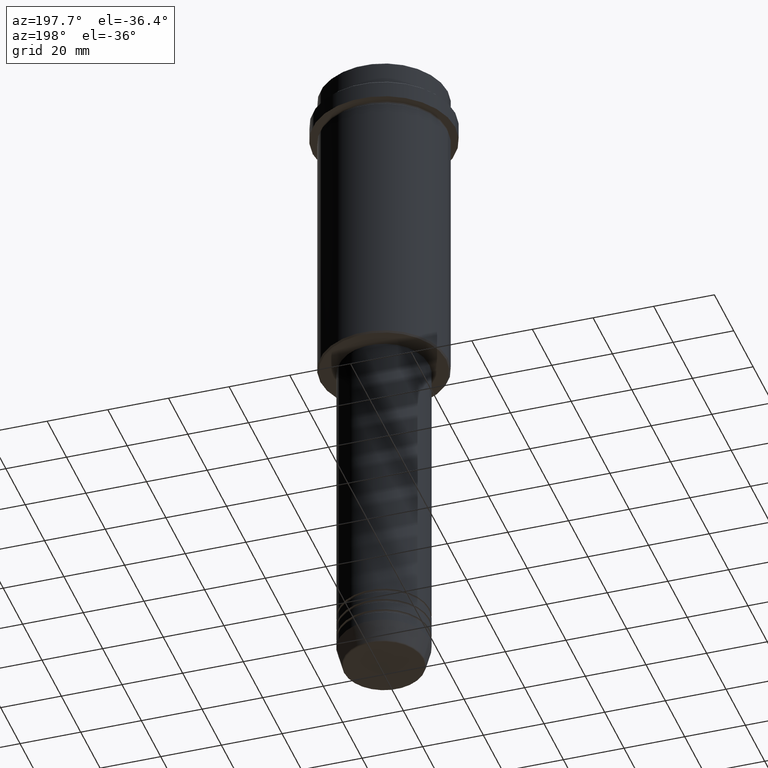
[diagram: clean part render]
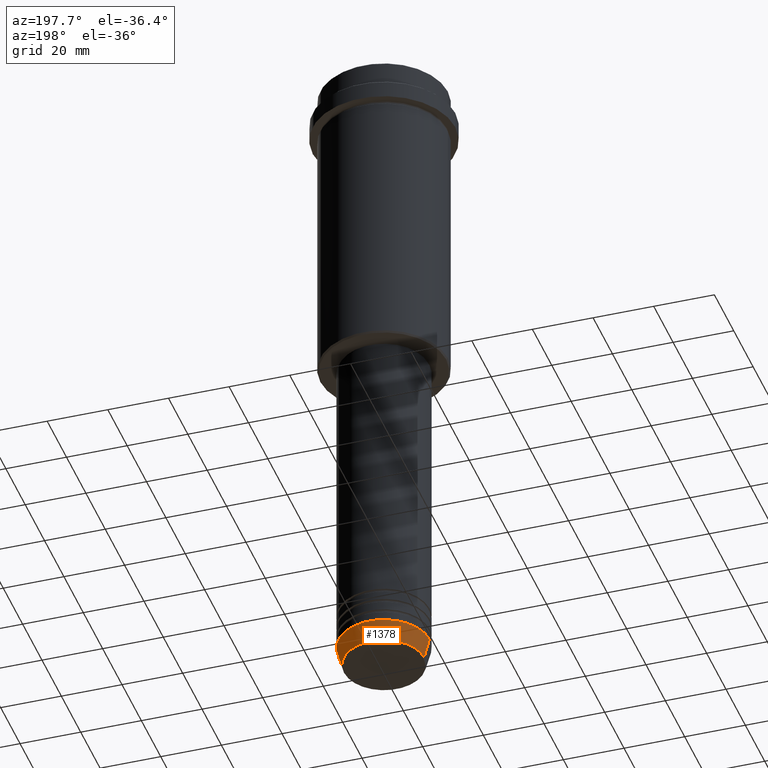
[diagram: same view with one face highlighted and labeled with its STEP entity id]
A machine part, auxiliary view. The second image highlights one B-rep face of the part: STEP entity #1378.
In plain terms, the highlighted conical surface has half-angle 15 deg.
Its self-contained STEP definition (entity closure, byte-faithful):
#9 = LINE ( 'NONE', #149, #661 ) ;
#12 = ORIENTED_EDGE ( 'NONE', *, *, #523, .F. ) ;
#23 = FACE_OUTER_BOUND ( 'NONE', #480, .T. ) ;
#102 = VERTEX_POINT ( 'NONE', #285 ) ;
#149 = CARTESIAN_POINT ( 'NONE',  ( -15.00000000000000000, 1.836970198721029589E-15, -213.0000000000000284 ) ) ;
#212 = DIRECTION ( 'NONE',  ( -0.000000000000000000, -0.000000000000000000, 1.000000000000000000 ) ) ;
#268 = DIRECTION ( 'NONE',  ( 1.000000000000000000, 0.000000000000000000, 0.000000000000000000 ) ) ;
#283 = CARTESIAN_POINT ( 'NONE',  ( -15.00000000000000000, 1.836970198721029589E-15, -213.0000000000000284 ) ) ;
#285 = CARTESIAN_POINT ( 'NONE',  ( 13.22365507213719482, 0.000000000000000000, -219.6294095225512706 ) ) ;
#397 = CARTESIAN_POINT ( 'NONE',  ( 15.00000000000000000, 0.000000000000000000, -213.0000000000000284 ) ) ;
#445 = AXIS2_PLACEMENT_3D ( 'NONE', #1292, #212, #1296 ) ;
#460 = CIRCLE ( 'NONE', #445, 13.22365507213719482 ) ;
#461 = CONICAL_SURFACE ( 'NONE', #1044, 15.00000000000000000, 0.2617993877991500740 ) ;
#462 = CARTESIAN_POINT ( 'NONE',  ( 0.000000000000000000, 0.000000000000000000, -213.0000000000000284 ) ) ;
#471 = DIRECTION ( 'NONE',  ( -0.2588190451025213501, 3.169619151431772337E-17, 0.9659258262890680902 ) ) ;
#480 = EDGE_LOOP ( 'NONE', ( #1109, #642, #632, #12 ) ) ;
#523 = EDGE_CURVE ( 'NONE', #102, #726, #1158, .T. ) ;
#572 = DIRECTION ( 'NONE',  ( -0.000000000000000000, -0.000000000000000000, 1.000000000000000000 ) ) ;
#632 = ORIENTED_EDGE ( 'NONE', *, *, #941, .F. ) ;
#642 = ORIENTED_EDGE ( 'NONE', *, *, #839, .T. ) ;
#661 = VECTOR ( 'NONE', #471, 1000.000000000000000 ) ;
#681 = CARTESIAN_POINT ( 'NONE',  ( 15.00000000000000000, 0.000000000000000000, -213.0000000000000284 ) ) ;
#726 = VERTEX_POINT ( 'NONE', #681 ) ;
#839 = EDGE_CURVE ( 'NONE', #846, #994, #9, .T. ) ;
#846 = VERTEX_POINT ( 'NONE', #900 ) ;
#900 = CARTESIAN_POINT ( 'NONE',  ( -13.22365507213719660, 1.728200442216588780E-15, -219.6294095225512706 ) ) ;
#904 = DIRECTION ( 'NONE',  ( 1.000000000000000000, 0.000000000000000000, 0.000000000000000000 ) ) ;
#941 = EDGE_CURVE ( 'NONE', #726, #994, #1302, .T. ) ;
#991 = AXIS2_PLACEMENT_3D ( 'NONE', #1250, #1262, #268 ) ;
#994 = VERTEX_POINT ( 'NONE', #283 ) ;
#1044 = AXIS2_PLACEMENT_3D ( 'NONE', #462, #572, #904 ) ;
#1109 = ORIENTED_EDGE ( 'NONE', *, *, #1161, .T. ) ;
#1158 = LINE ( 'NONE', #397, #1214 ) ;
#1161 = EDGE_CURVE ( 'NONE', #102, #846, #460, .T. ) ;
#1214 = VECTOR ( 'NONE', #1353, 1000.000000000000000 ) ;
#1250 = CARTESIAN_POINT ( 'NONE',  ( 0.000000000000000000, 0.000000000000000000, -213.0000000000000284 ) ) ;
#1262 = DIRECTION ( 'NONE',  ( -0.000000000000000000, -0.000000000000000000, 1.000000000000000000 ) ) ;
#1292 = CARTESIAN_POINT ( 'NONE',  ( 0.000000000000000000, 0.000000000000000000, -219.6294095225512706 ) ) ;
#1296 = DIRECTION ( 'NONE',  ( 1.000000000000000000, 0.000000000000000000, 0.000000000000000000 ) ) ;
#1302 = CIRCLE ( 'NONE', #991, 15.00000000000000000 ) ;
#1353 = DIRECTION ( 'NONE',  ( 0.2588190451025213501, 0.000000000000000000, 0.9659258262890680902 ) ) ;
#1378 = ADVANCED_FACE ( 'NONE', ( #23 ), #461, .T. ) ;